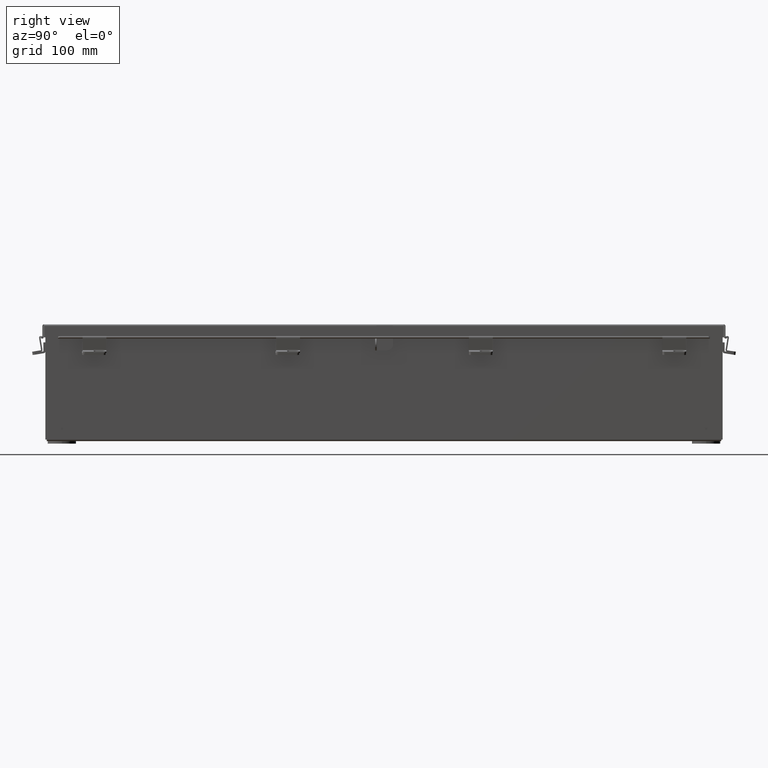
[diagram: clean part render]
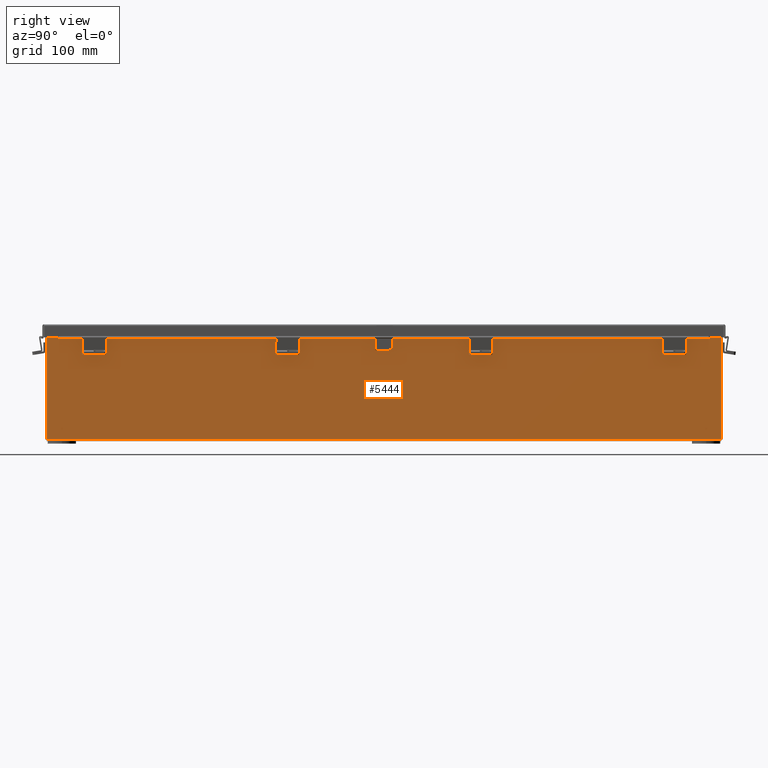
[diagram: same view with one face highlighted and labeled with its STEP entity id]
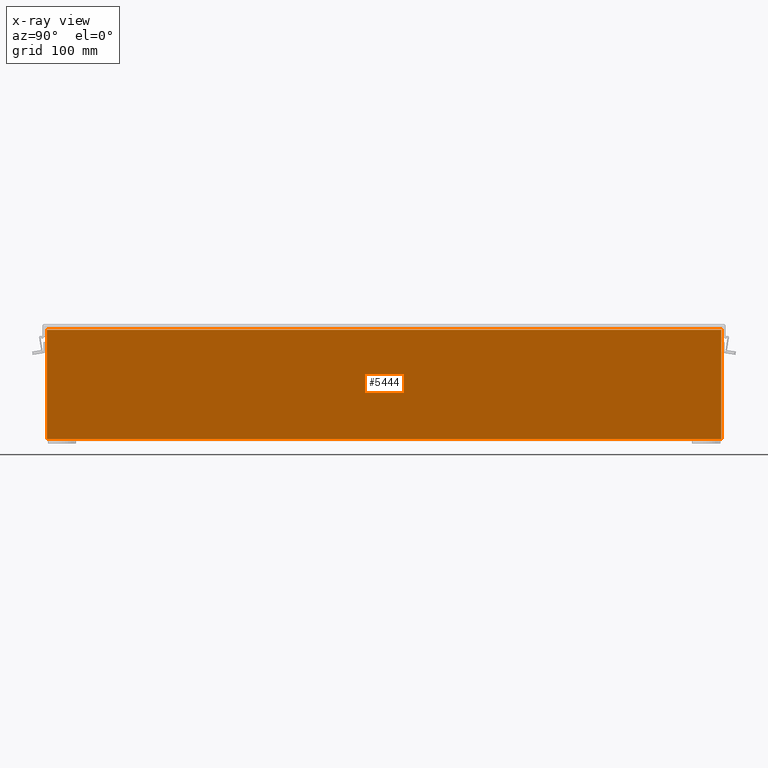
[diagram: x-ray of the same camera — body ghosted, the highlighted face saturated]
A machine part, right view. The second image highlights one B-rep face of the part: STEP entity #5444.
The next image is the same camera in x-ray: the body ghosted, the highlighted face saturated — about 0% of this face is hidden behind the body in this view.
In plain terms, the highlighted planar face has unit normal (-1, 0, 0).
Its self-contained STEP definition (entity closure, byte-faithful):
#218 = DIRECTION ( 'NONE',  ( -0.0000000000000000000, -1.000000000000000000, -0.0000000000000000000 ) ) ;
#307 = CARTESIAN_POINT ( 'NONE',  ( 3.000000000000020900, 17.92530000000000000, 5.837599999999999200 ) ) ;
#470 = ORIENTED_EDGE ( 'NONE', *, *, #16923, .T. ) ;
#2100 = VECTOR ( 'NONE', #8098, 39.37007874015748100 ) ;
#2239 = ORIENTED_EDGE ( 'NONE', *, *, #4554, .F. ) ;
#2914 = VERTEX_POINT ( 'NONE', #5385 ) ;
#3804 = VERTEX_POINT ( 'NONE', #7264 ) ;
#4064 = EDGE_CURVE ( 'NONE', #2914, #13238, #14287, .T. ) ;
#4339 = FACE_OUTER_BOUND ( 'NONE', #26517, .T. ) ;
#4554 = EDGE_CURVE ( 'NONE', #3804, #13238, #24871, .T. ) ;
#5377 = DIRECTION ( 'NONE',  ( 3.455316574900958600E-015, 0.0000000000000000000, 1.000000000000000000 ) ) ;
#5385 = CARTESIAN_POINT ( 'NONE',  ( 3.000000000000020900, -17.92530000000000000, 5.837599999999999200 ) ) ;
#5444 = ADVANCED_FACE ( 'NONE', ( #4339 ), #23788, .F. ) ;
#6036 = DIRECTION ( 'NONE',  ( 3.455316574900958600E-015, 0.0000000000000000000, 1.000000000000000000 ) ) ;
#6338 = EDGE_CURVE ( 'NONE', #7696, #2914, #13266, .T. ) ;
#7264 = CARTESIAN_POINT ( 'NONE',  ( 3.000000000000000900, 17.92530000000000000, 0.01300000000000202700 ) ) ;
#7696 = VERTEX_POINT ( 'NONE', #26035 ) ;
#7897 = CARTESIAN_POINT ( 'NONE',  ( 3.000000000000000900, -17.92530000000000000, 0.01299999999999984300 ) ) ;
#8098 = DIRECTION ( 'NONE',  ( -3.455316574900958600E-015, 0.0000000000000000000, -1.000000000000000000 ) ) ;
#8197 = CARTESIAN_POINT ( 'NONE',  ( 3.000000000000000900, -17.92530000000000000, -1.062859610035002400E-014 ) ) ;
#13238 = VERTEX_POINT ( 'NONE', #22131 ) ;
#13266 = LINE ( 'NONE', #307, #23879 ) ;
#14287 = LINE ( 'NONE', #8197, #2100 ) ;
#15460 = ORIENTED_EDGE ( 'NONE', *, *, #6338, .T. ) ;
#16788 = DIRECTION ( 'NONE',  ( -1.000000000000000000, 0.0000000000000000000, 3.455316574900958600E-015 ) ) ;
#16923 = EDGE_CURVE ( 'NONE', #3804, #7696, #23273, .T. ) ;
#18282 = ORIENTED_EDGE ( 'NONE', *, *, #4064, .T. ) ;
#19722 = CARTESIAN_POINT ( 'NONE',  ( 3.000000000000000900, 17.92530000000000000, -1.062859610035002400E-014 ) ) ;
#22131 = CARTESIAN_POINT ( 'NONE',  ( 3.000000000000000900, -17.92530000000000000, 0.01299999999999946700 ) ) ;
#22721 = CARTESIAN_POINT ( 'NONE',  ( 3.000000000000000900, 0.0000000000000000000, -1.062859610035002400E-014 ) ) ;
#23273 = LINE ( 'NONE', #19722, #24697 ) ;
#23788 = PLANE ( 'NONE',  #29154 ) ;
#23879 = VECTOR ( 'NONE', #218, 39.37007874015748100 ) ;
#24697 = VECTOR ( 'NONE', #6036, 39.37007874015748100 ) ;
#24871 = LINE ( 'NONE', #7897, #25580 ) ;
#24994 = DIRECTION ( 'NONE',  ( -2.106385868603161400E-031, -1.000000000000000000, -6.096072018129156600E-017 ) ) ;
#25580 = VECTOR ( 'NONE', #24994, 39.37007874015748100 ) ;
#26035 = CARTESIAN_POINT ( 'NONE',  ( 3.000000000000020900, 17.92529999999998900, 5.837599999999999200 ) ) ;
#26517 = EDGE_LOOP ( 'NONE', ( #15460, #18282, #2239, #470 ) ) ;
#29154 = AXIS2_PLACEMENT_3D ( 'NONE', #22721, #16788, #5377 ) ;